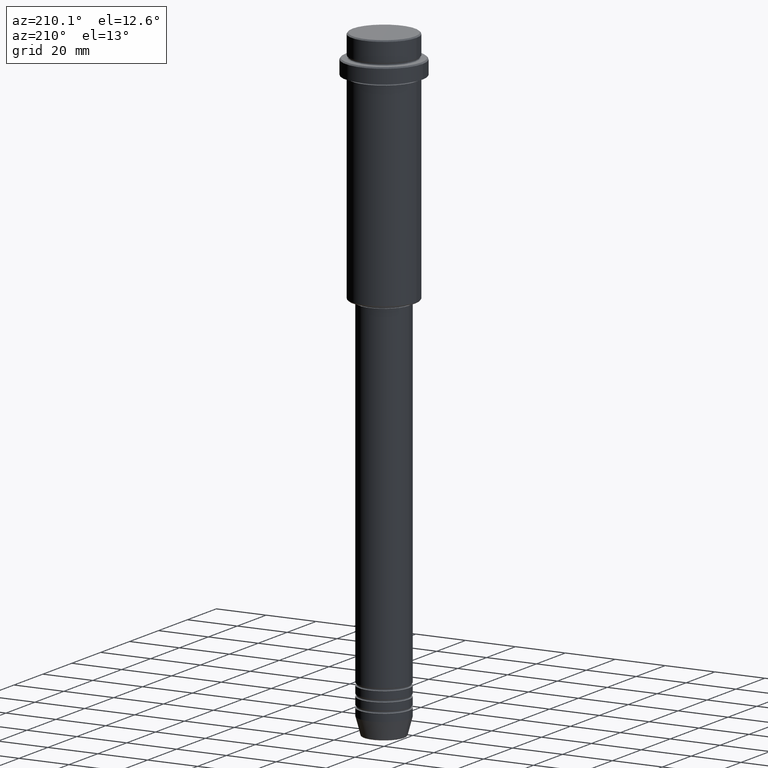
[diagram: clean part render]
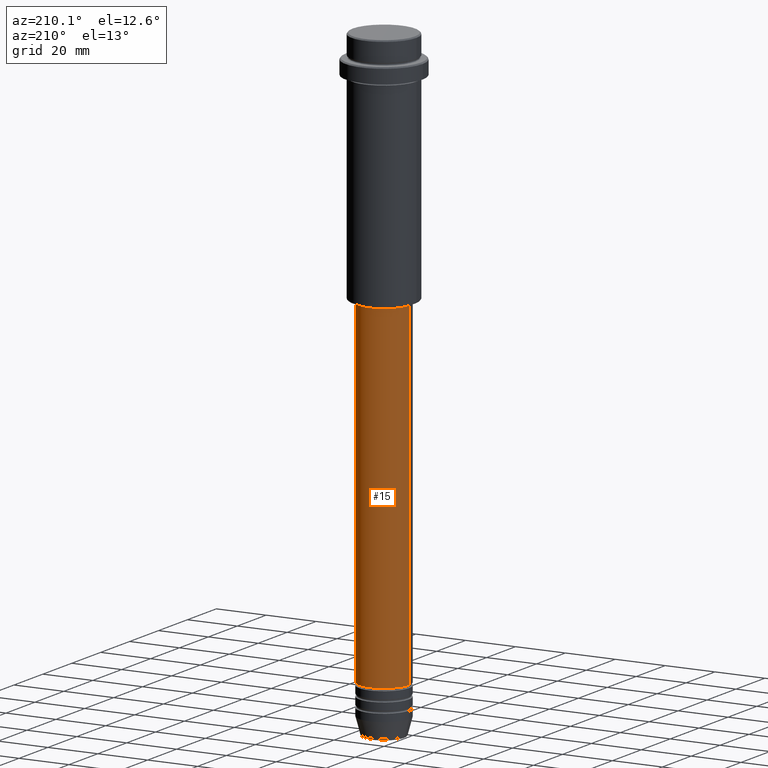
[diagram: same view with one face highlighted and labeled with its STEP entity id]
A machine part, auxiliary view. The second image highlights one B-rep face of the part: STEP entity #15.
In plain terms, the highlighted cylindrical surface (edge-blend (fillet) strip) has radius 10 mm, axis along (-0, -0, 1).
Its self-contained STEP definition (entity closure, byte-faithful):
#15 = ADVANCED_FACE ( 'NONE', ( #1250 ), #1048, .T. ) ;
#29 = CARTESIAN_POINT ( 'NONE',  ( 0.000000000000000000, 0.000000000000000000, -96.00000000000000000 ) ) ;
#40 = DIRECTION ( 'NONE',  ( -0.000000000000000000, -0.000000000000000000, 1.000000000000000000 ) ) ;
#78 = EDGE_CURVE ( 'NONE', #1259, #1372, #1269, .T. ) ;
#224 = CARTESIAN_POINT ( 'NONE',  ( -10.00000000000000178, 1.224646799147353454E-15, -96.00000000000000000 ) ) ;
#254 = DIRECTION ( 'NONE',  ( -0.000000000000000000, -0.000000000000000000, 1.000000000000000000 ) ) ;
#265 = CARTESIAN_POINT ( 'NONE',  ( -10.00000000000000178, 1.224646799147353454E-15, 0.000000000000000000 ) ) ;
#270 = DIRECTION ( 'NONE',  ( 1.000000000000000000, 0.000000000000000000, 0.000000000000000000 ) ) ;
#275 = EDGE_LOOP ( 'NONE', ( #293, #412, #956, #686 ) ) ;
#293 = ORIENTED_EDGE ( 'NONE', *, *, #706, .T. ) ;
#319 = EDGE_CURVE ( 'NONE', #1224, #1372, #1033, .T. ) ;
#330 = CARTESIAN_POINT ( 'NONE',  ( -10.00000000000000000, 1.224646799147353256E-15, -230.9999999999998863 ) ) ;
#379 = CARTESIAN_POINT ( 'NONE',  ( 10.00000000000000000, 0.000000000000000000, -230.9999999999998863 ) ) ;
#391 = DIRECTION ( 'NONE',  ( 1.000000000000000000, 0.000000000000000000, 0.000000000000000000 ) ) ;
#412 = ORIENTED_EDGE ( 'NONE', *, *, #78, .T. ) ;
#420 = AXIS2_PLACEMENT_3D ( 'NONE', #29, #40, #1207 ) ;
#507 = EDGE_CURVE ( 'NONE', #658, #1224, #1120, .T. ) ;
#579 = VECTOR ( 'NONE', #927, 1000.000000000000000 ) ;
#604 = CIRCLE ( 'NONE', #1407, 10.00000000000000000 ) ;
#658 = VERTEX_POINT ( 'NONE', #379 ) ;
#686 = ORIENTED_EDGE ( 'NONE', *, *, #507, .F. ) ;
#706 = EDGE_CURVE ( 'NONE', #658, #1259, #604, .T. ) ;
#717 = DIRECTION ( 'NONE',  ( -0.000000000000000000, -0.000000000000000000, 1.000000000000000000 ) ) ;
#799 = CARTESIAN_POINT ( 'NONE',  ( 10.00000000000000178, 0.000000000000000000, 0.000000000000000000 ) ) ;
#822 = AXIS2_PLACEMENT_3D ( 'NONE', #935, #717, #270 ) ;
#825 = VECTOR ( 'NONE', #254, 1000.000000000000000 ) ;
#927 = DIRECTION ( 'NONE',  ( -0.000000000000000000, -0.000000000000000000, 1.000000000000000000 ) ) ;
#930 = CARTESIAN_POINT ( 'NONE',  ( 0.000000000000000000, 0.000000000000000000, -230.9999999999998863 ) ) ;
#935 = CARTESIAN_POINT ( 'NONE',  ( 0.000000000000000000, 0.000000000000000000, 0.000000000000000000 ) ) ;
#956 = ORIENTED_EDGE ( 'NONE', *, *, #319, .F. ) ;
#1033 = CIRCLE ( 'NONE', #420, 10.00000000000000178 ) ;
#1048 = CYLINDRICAL_SURFACE ( 'NONE', #822, 10.00000000000000178 ) ;
#1057 = DIRECTION ( 'NONE',  ( -0.000000000000000000, -0.000000000000000000, 1.000000000000000000 ) ) ;
#1120 = LINE ( 'NONE', #799, #825 ) ;
#1207 = DIRECTION ( 'NONE',  ( 1.000000000000000000, 0.000000000000000000, 0.000000000000000000 ) ) ;
#1224 = VERTEX_POINT ( 'NONE', #1280 ) ;
#1250 = FACE_OUTER_BOUND ( 'NONE', #275, .T. ) ;
#1259 = VERTEX_POINT ( 'NONE', #330 ) ;
#1269 = LINE ( 'NONE', #265, #579 ) ;
#1280 = CARTESIAN_POINT ( 'NONE',  ( 10.00000000000000178, 0.000000000000000000, -96.00000000000000000 ) ) ;
#1372 = VERTEX_POINT ( 'NONE', #224 ) ;
#1407 = AXIS2_PLACEMENT_3D ( 'NONE', #930, #1057, #391 ) ;